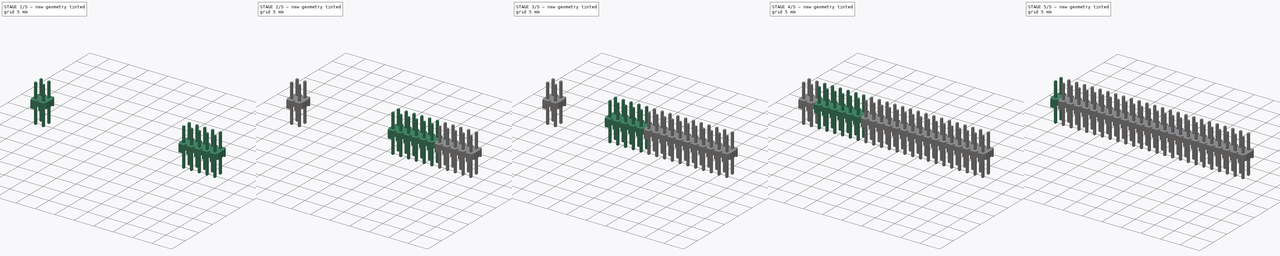
[diagram: build sequence overview — one tinted view per stage of 5, left to right]
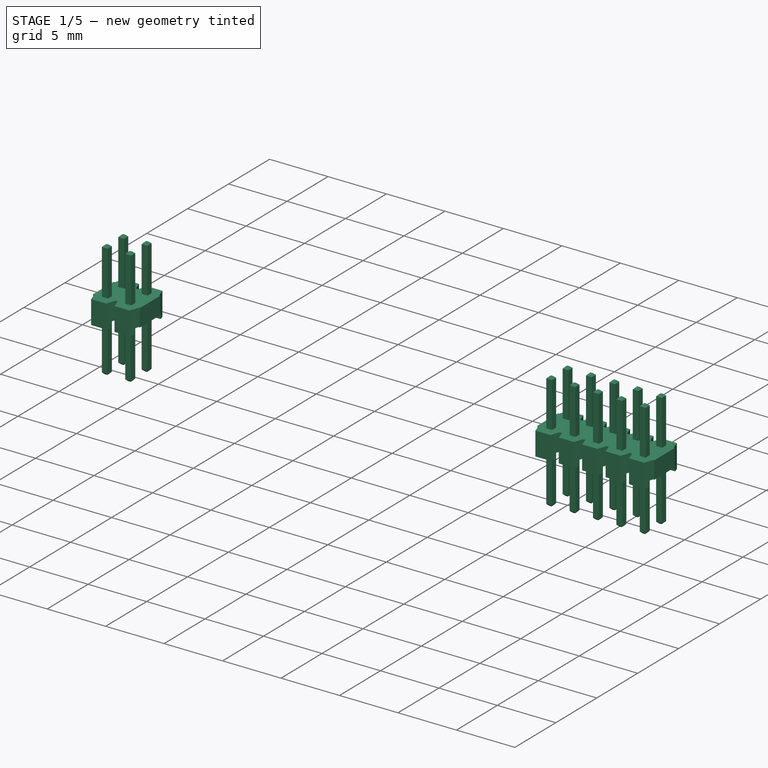
[diagram: stage 1 of 5 — iso view after this stage's code; geometry added in this stage tinted green]
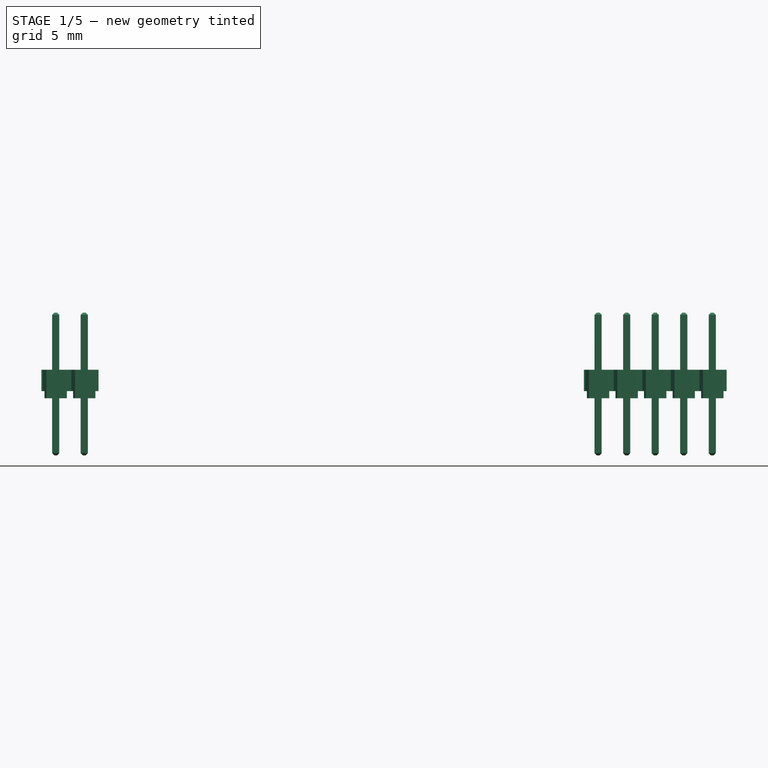
[diagram: stage 1 of 5 — front view after this stage's code; geometry added in this stage tinted green]
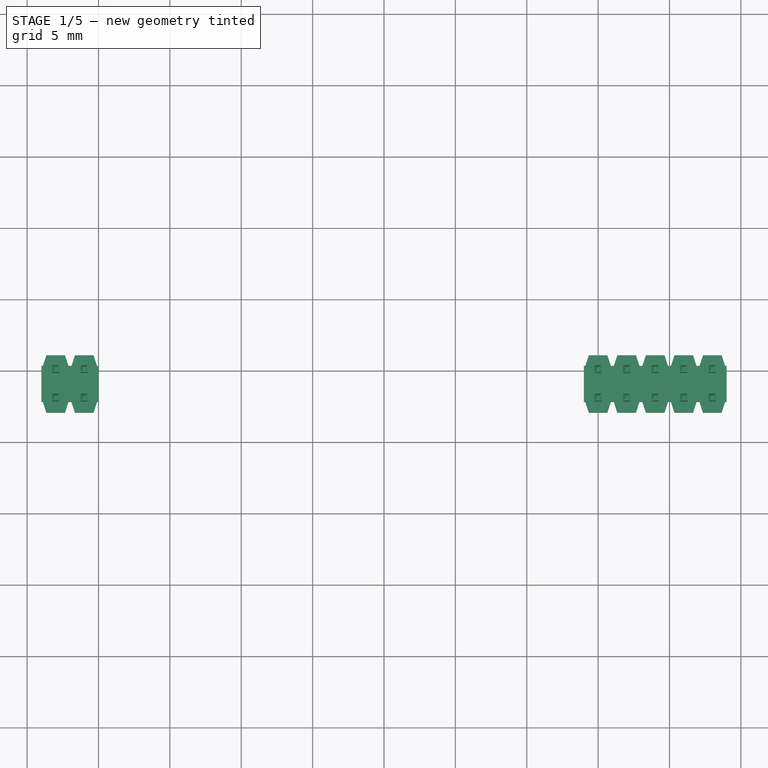
[diagram: stage 1 of 5 — top view after this stage's code; geometry added in this stage tinted green]
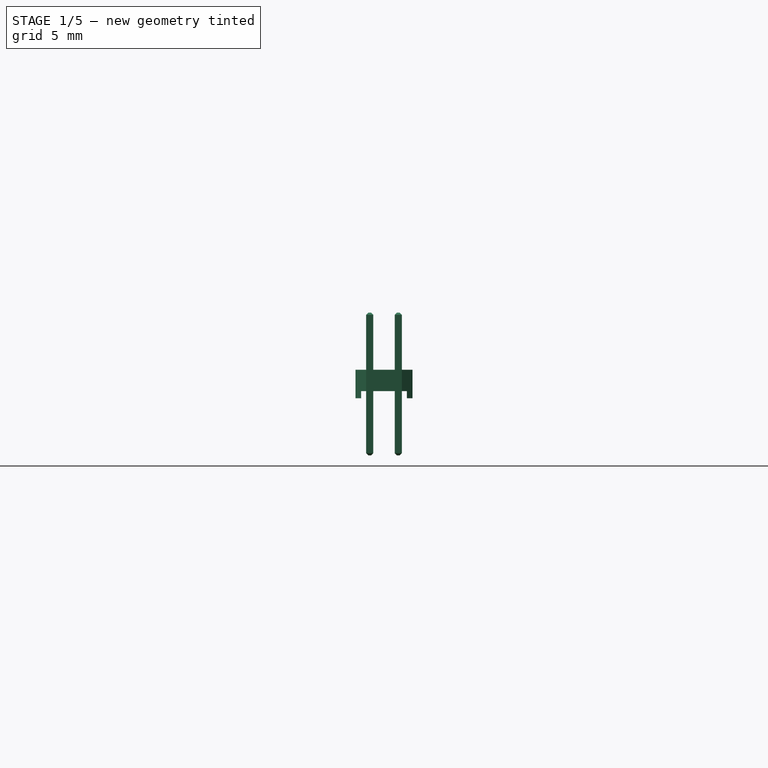
[diagram: stage 1 of 5 — right view after this stage's code; geometry added in this stage tinted green]
FCSTD DOCUMENT  (FreeCAD 0.14R3702 (Git))
Label: 2x24-male-pin-header-2mm-pitch
License: CC-BY 3.0
LicenseURL: http://creativecommons.org/licenses/by/3.0/
objects: Part::Feature×24, Part::MultiFuse×23, Sketcher::SketchObject×4, PartDesign::Pad×2, PartDesign::Pocket×2, PartDesign::Chamfer×1, Part::Fuse×1, App::DocumentObjectGroup×1
note: 61 computed .brp shape members not serialized (recipe doc carries the construction recipe); baked Part::Feature solids carry a one-line shape summary decoded from their .brp

FEATURE [App::DocumentObjectGroup] Groupe  label="Header_src"
  Group = -> [Pocket,Pad001,Pad,Fusion]
FEATURE [Part::Feature] Fusion001 .. Fusion024  x24 (patterned run collapsed; names and placements below)
  shape: bbox 2 x 4 x 10 mm, 54 faces (baked)
  placements: 24 in arithmetic series — first pos=(2,0,0) rot=(0,0,1;0rad), step (2,0,0), last pos=(48,0,0) rot=(0,0,1;0rad)
FEATURE [Part::MultiFuse] Fusion025
  Shapes = -> [Fusion001,Fusion002]
FEATURE [Part::MultiFuse] Fusion026
  Shapes = -> [Fusion025,Fusion024]
FEATURE [Part::MultiFuse] Fusion027
  Shapes = -> [Fusion026,Fusion023]
FEATURE [Part::MultiFuse] Fusion028
  Shapes = -> [Fusion027,Fusion022]
FEATURE [Part::MultiFuse] Fusion029
  Shapes = -> [Fusion028,Fusion021]
FEATURE [Part::MultiFuse] Fusion030
  Shapes = -> [Fusion029,Fusion020]
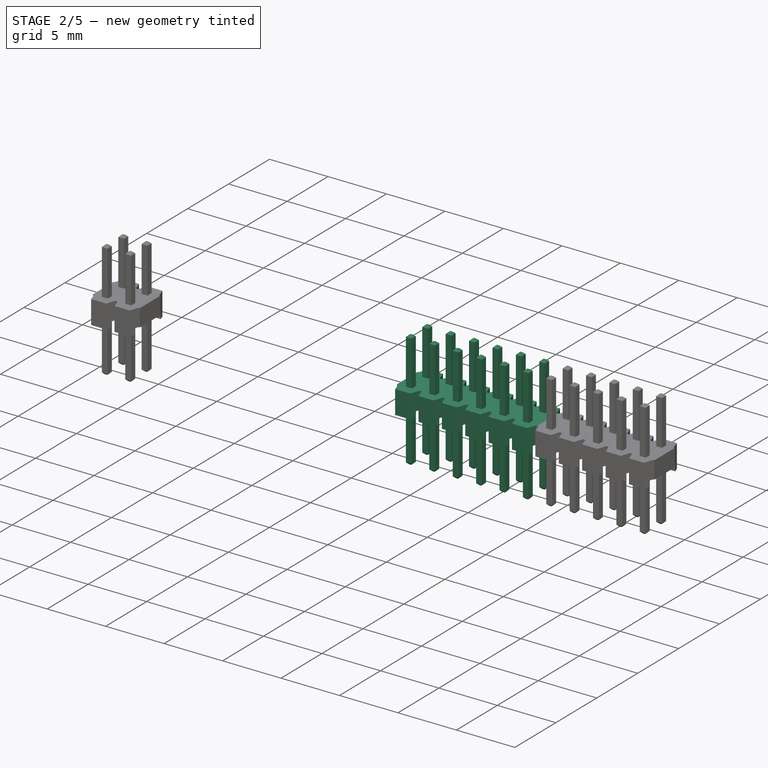
[diagram: stage 2 of 5 — iso view after this stage's code; geometry added in this stage tinted green]
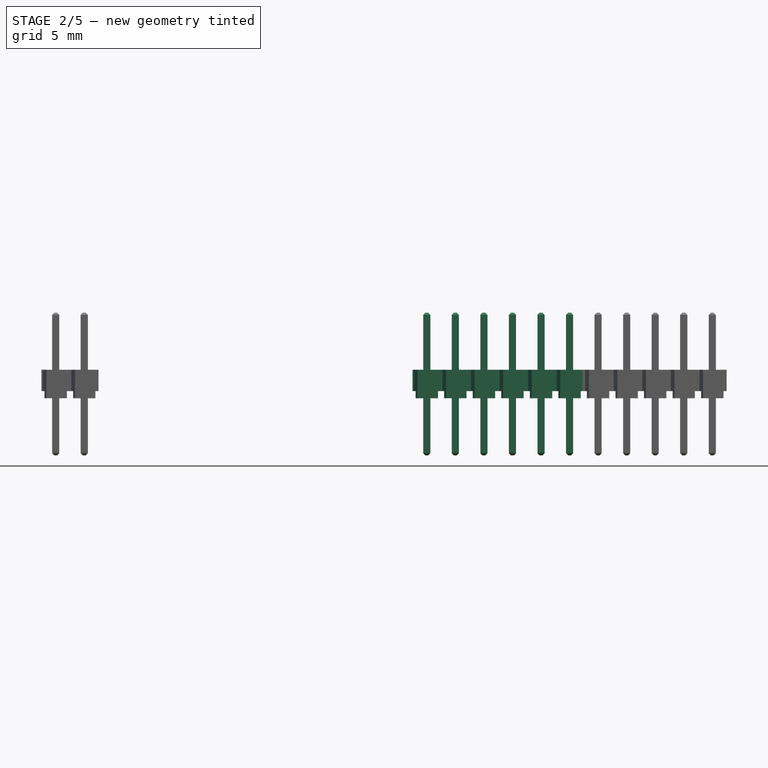
[diagram: stage 2 of 5 — front view after this stage's code; geometry added in this stage tinted green]
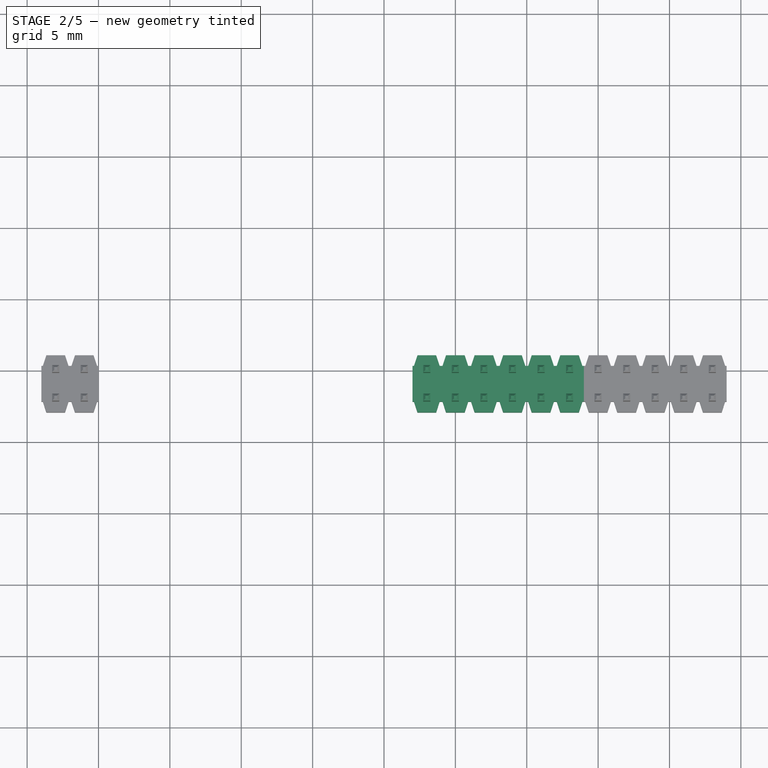
[diagram: stage 2 of 5 — top view after this stage's code; geometry added in this stage tinted green]
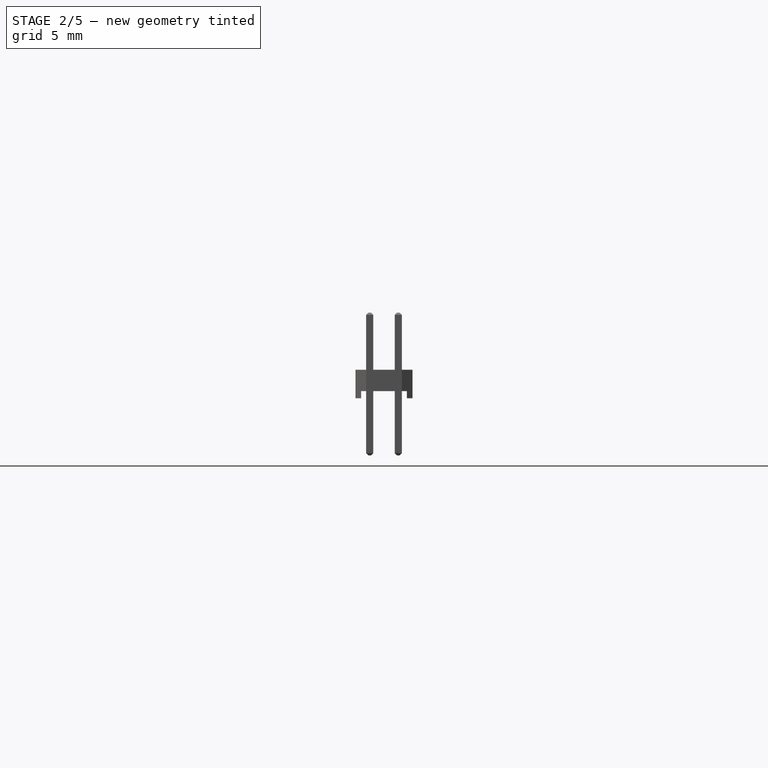
[diagram: stage 2 of 5 — right view after this stage's code; geometry added in this stage tinted green]
FEATURE [Part::MultiFuse] Fusion031
  Shapes = -> [Fusion030,Fusion019]
FEATURE [Part::MultiFuse] Fusion032
  Shapes = -> [Fusion031,Fusion018]
FEATURE [Part::MultiFuse] Fusion033
  Shapes = -> [Fusion032,Fusion017]
FEATURE [Part::MultiFuse] Fusion034
  Shapes = -> [Fusion033,Fusion016]
FEATURE [Part::MultiFuse] Fusion035
  Shapes = -> [Fusion034,Fusion015]
FEATURE [Part::MultiFuse] Fusion036
  Shapes = -> [Fusion035,Fusion014]
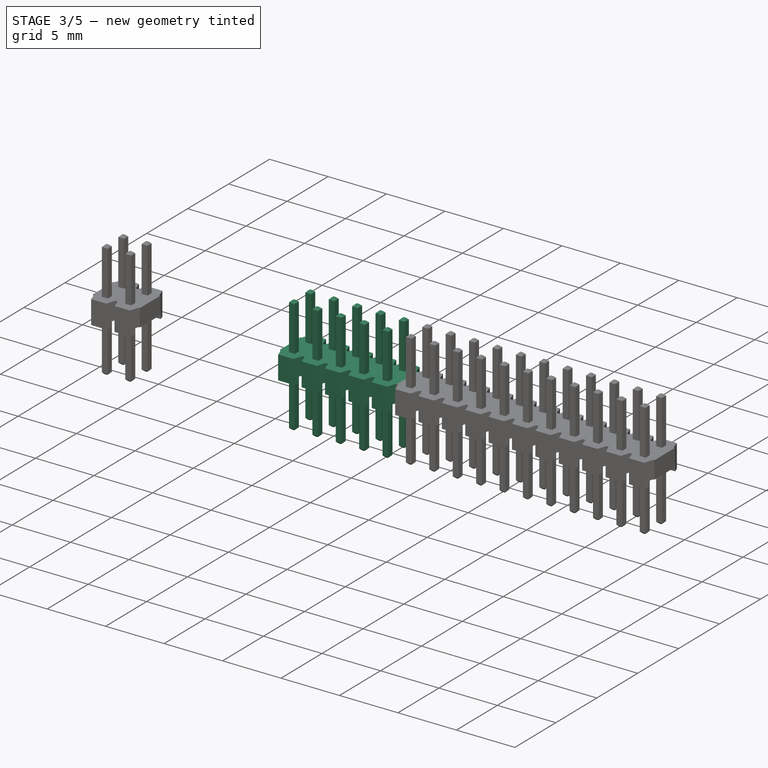
[diagram: stage 3 of 5 — iso view after this stage's code; geometry added in this stage tinted green]
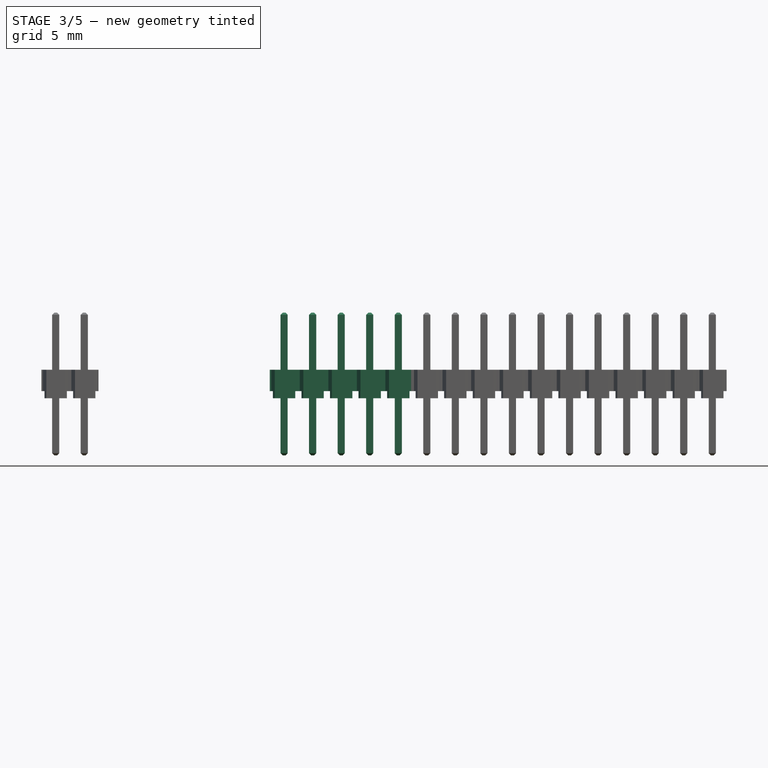
[diagram: stage 3 of 5 — front view after this stage's code; geometry added in this stage tinted green]
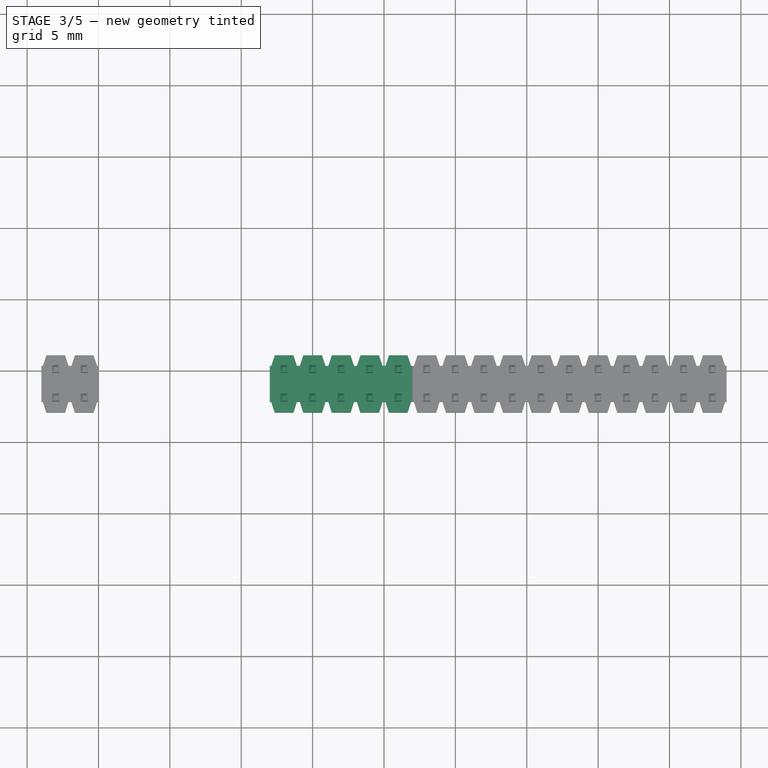
[diagram: stage 3 of 5 — top view after this stage's code; geometry added in this stage tinted green]
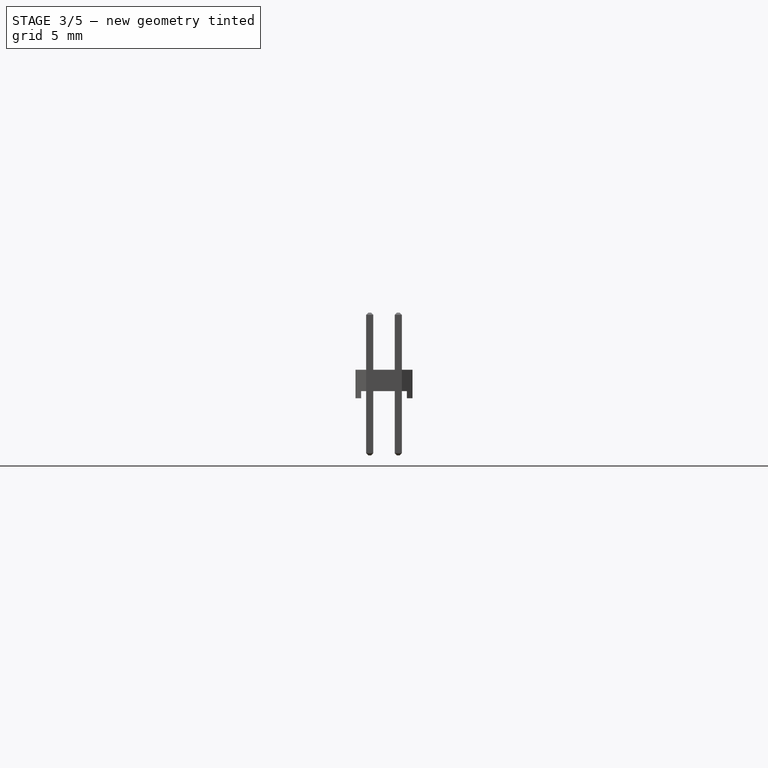
[diagram: stage 3 of 5 — right view after this stage's code; geometry added in this stage tinted green]
FEATURE [Part::MultiFuse] Fusion037
  Shapes = -> [Fusion036,Fusion013]
FEATURE [Part::MultiFuse] Fusion038
  Shapes = -> [Fusion037,Fusion012]
FEATURE [Part::MultiFuse] Fusion039
  Shapes = -> [Fusion038,Fusion011]
FEATURE [Part::MultiFuse] Fusion040
  Shapes = -> [Fusion039,Fusion010]
FEATURE [Part::MultiFuse] Fusion041
  Shapes = -> [Fusion040,Fusion009]
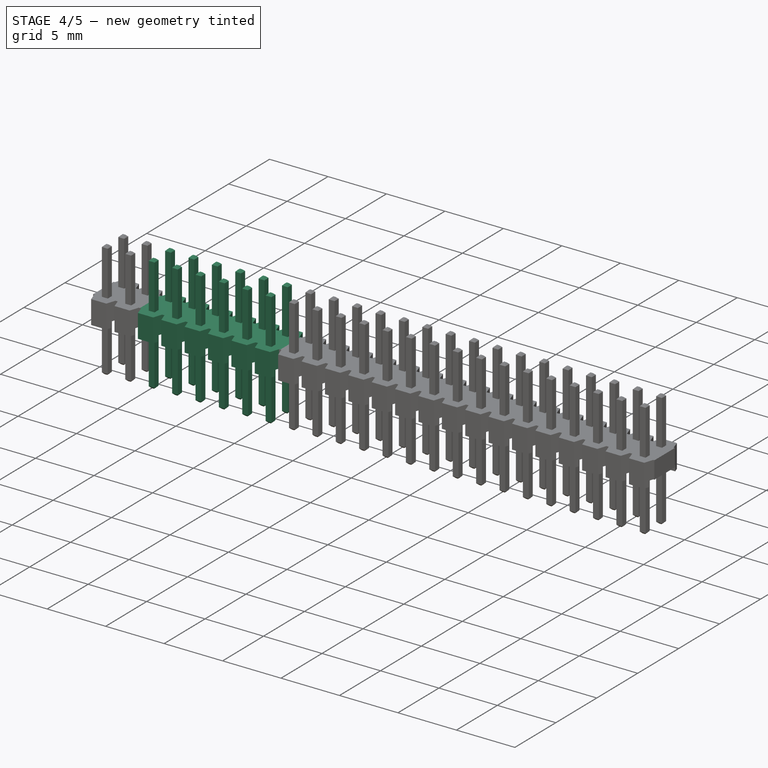
[diagram: stage 4 of 5 — iso view after this stage's code; geometry added in this stage tinted green]
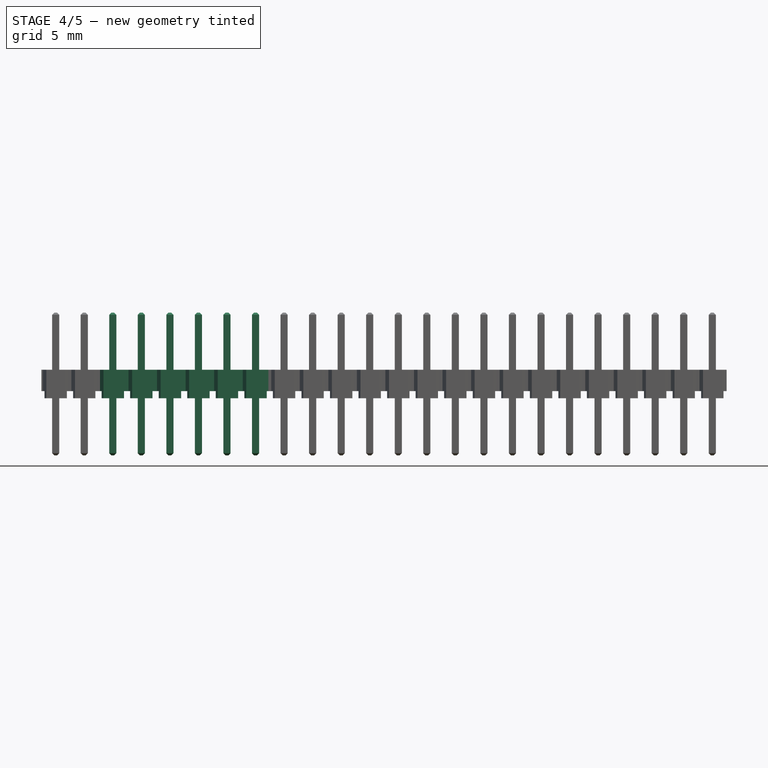
[diagram: stage 4 of 5 — front view after this stage's code; geometry added in this stage tinted green]
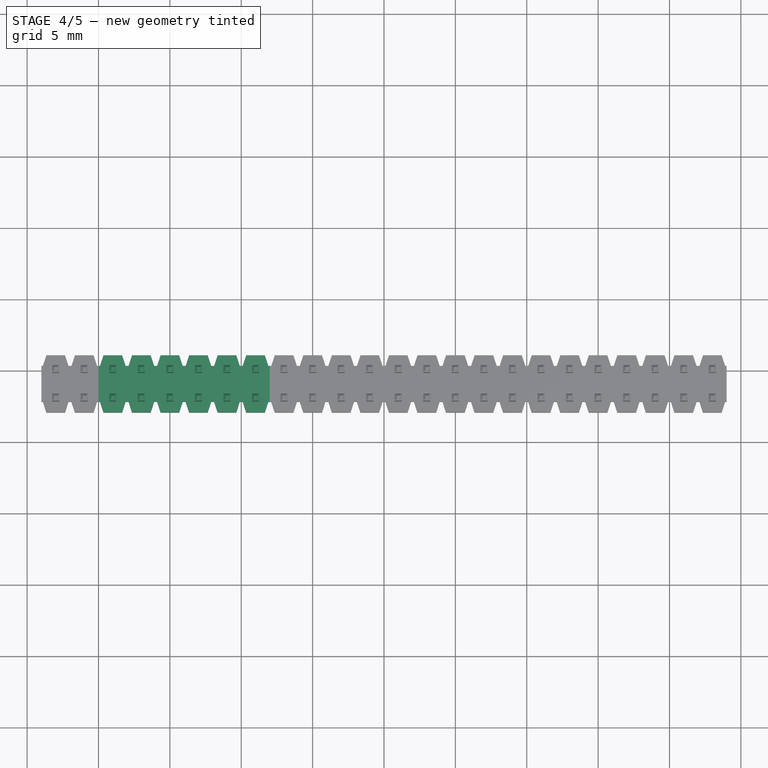
[diagram: stage 4 of 5 — top view after this stage's code; geometry added in this stage tinted green]
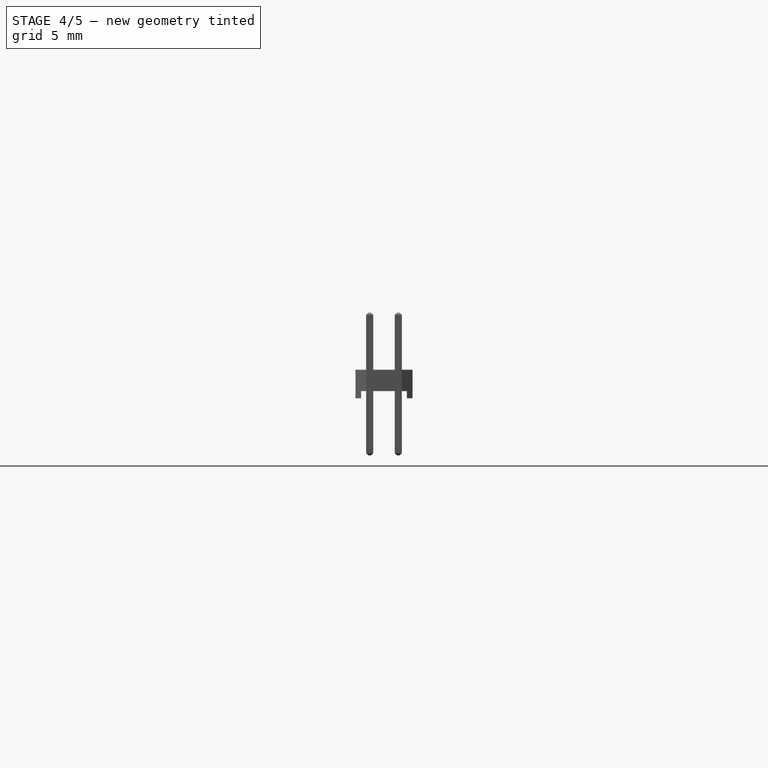
[diagram: stage 4 of 5 — right view after this stage's code; geometry added in this stage tinted green]
FEATURE [Part::MultiFuse] Fusion042
  Shapes = -> [Fusion041,Fusion008]
FEATURE [Part::MultiFuse] Fusion043
  Shapes = -> [Fusion042,Fusion007]
FEATURE [Part::MultiFuse] Fusion044
  Shapes = -> [Fusion043,Fusion006]
FEATURE [Part::MultiFuse] Fusion045
  Shapes = -> [Fusion044,Fusion005]
FEATURE [Part::MultiFuse] Fusion046
  Shapes = -> [Fusion045,Fusion004]
FEATURE [Part::MultiFuse] Fusion047  label="header-2x24"
  Shapes = -> [Fusion046,Fusion003]
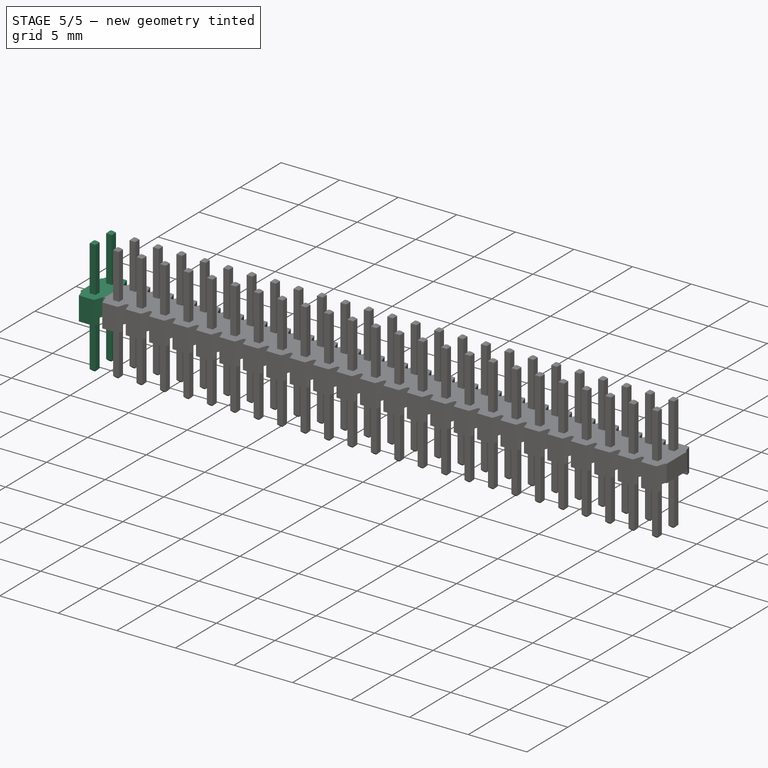
[diagram: stage 5 of 5 — iso view after this stage's code; geometry added in this stage tinted green]
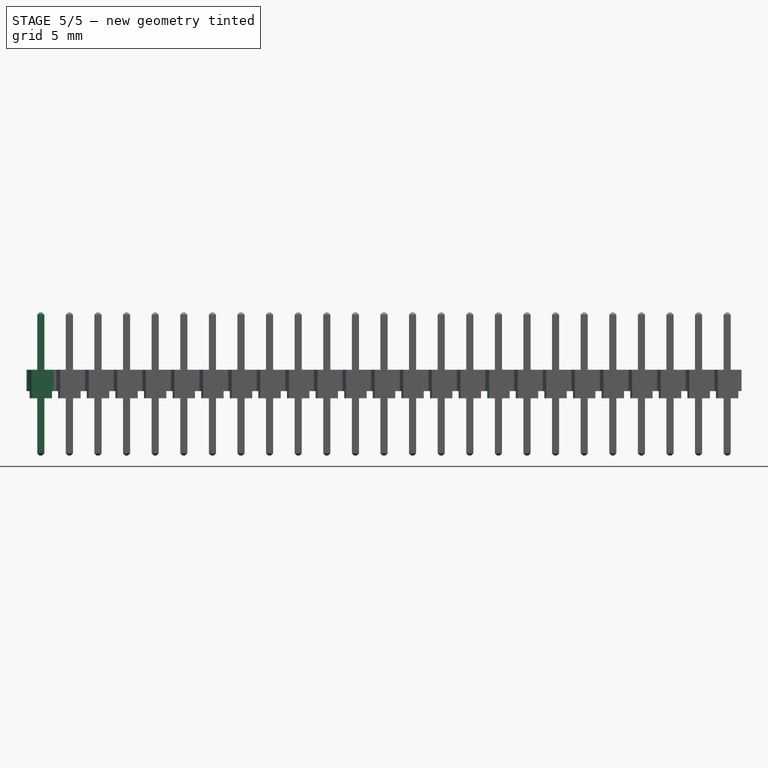
[diagram: stage 5 of 5 — front view after this stage's code; geometry added in this stage tinted green]
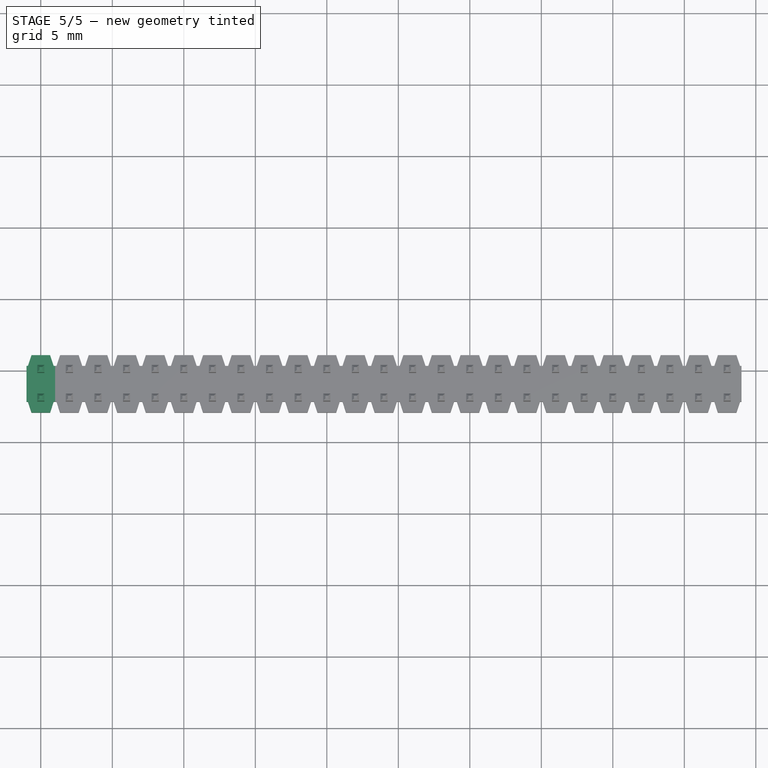
[diagram: stage 5 of 5 — top view after this stage's code; geometry added in this stage tinted green]
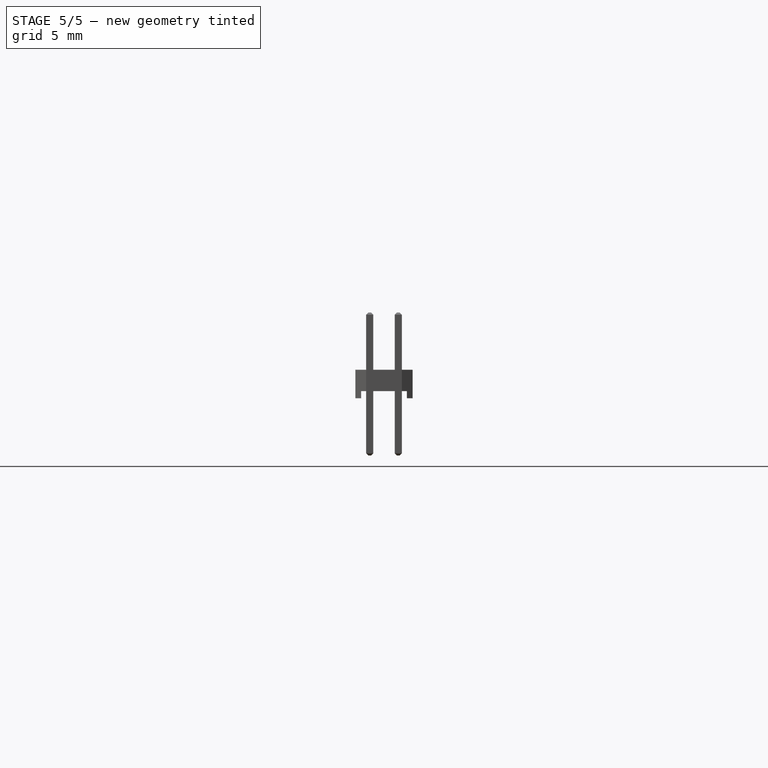
[diagram: stage 5 of 5 — right view after this stage's code; geometry added in this stage tinted green]
FEATURE [Sketcher::SketchObject] Sketch
  sketch-geometry (9):
    g0: LineSegment StartX=-0.25 StartY=0.25 StartZ=0 EndX=0.25 EndY=0.25 EndZ=0
    g1: LineSegment StartX=0.25 StartY=0.25 StartZ=0 EndX=0.25 EndY=-0.25 EndZ=0
    g2: LineSegment StartX=0.25 StartY=-0.25 StartZ=0 EndX=-0.25 EndY=-0.25 EndZ=0
    g3: LineSegment StartX=-0.25 StartY=-0.25 StartZ=0 EndX=-0.25 EndY=0.25 EndZ=0
    g4: LineSegment StartX=0.25 StartY=-0.25 StartZ=0 EndX=-0.25 EndY=0.25 EndZ=0
    g5: LineSegment StartX=-0.25 StartY=-1.75 StartZ=0 EndX=0.25 EndY=-1.75 EndZ=0
    g6: LineSegment StartX=0.25 StartY=-1.75 StartZ=0 EndX=0.25 EndY=-2.25 EndZ=0
    g7: LineSegment StartX=0.25 StartY=-2.25 StartZ=0 EndX=-0.25 EndY=-2.25 EndZ=0
    g8: LineSegment StartX=-0.25 StartY=-2.25 StartZ=0 EndX=-0.25 EndY=-1.75 EndZ=0
  constraints (26):
    c: Coincident(g0,g1)
    c: Coincident(g1,g2)
    c: Coincident(g2,g3)
    c: Coincident(g3,g0)
    c: Horizontal(g0)
    c: Horizontal(g2)
    c: Vertical(g1)
    c: Vertical(g3)
    c: DistanceX(g0) = 0.5
    c: DistanceY(g1) = -0.5
    c: Coincident(g4,g1)
    c: Coincident(g4,g0)
    c: DistanceX(g-1,g0) = 0.25
    c: DistanceY(g-1,g0) = 0.25
    c: Coincident(g5,g6)
    c: Coincident(g6,g7)
    c: Coincident(g7,g8)
    c: Coincident(g8,g5)
    c: Horizontal(g5)
    c: Horizontal(g7)
    c: Vertical(g6)
    c: Vertical(g8)
    c: Equal(g5,g2)
    c: Equal(g6,g1)
    c: DistanceX(g-1,g5) = 0.25
    c: DistanceY(g-1,g5) = -1.75
FEATURE [PartDesign::Pad] Pad
  Length = 10
  Length2 = 100
  Sketch = -> Sketch
  Type = 0
FEATURE [Sketcher::SketchObject] Sketch001
  Placement = pos=(0,0,4) rot=(0,0,1;0rad)
  sketch-geometry (5):
    g0: LineSegment StartX=-1 StartY=1 StartZ=0 EndX=1 EndY=1 EndZ=0
    g1: LineSegment StartX=1 StartY=1 StartZ=0 EndX=1 EndY=-3 EndZ=0
    g2: LineSegment StartX=1 StartY=-3 StartZ=0 EndX=-1 EndY=-3 EndZ=0
    g3: LineSegment StartX=-1 StartY=-3 StartZ=0 EndX=-1 EndY=1 EndZ=0
    g4: GeomPoint [constr] X=0 Y=0 Z=0
  constraints (14):
    c: Coincident(g0,g1)
    c: Coincident(g1,g2)
    c: Coincident(g2,g3)
    c: Coincident(g3,g0)
    c: Horizontal(g0)
    c: Horizontal(g2)
    c: Vertical(g1)
    c: Vertical(g3)
    c: DistanceX(g0) = 2
    c: DistanceY(g3) = 4
    c: PointOnObject(g4,g-1)
    c: PointOnObject(g4,g-2)
    c: DistanceY(g-1,g0) = 1
    c: DistanceX(g-1,g0) = 1
FEATURE [PartDesign::Pad] Pad001
  Length = 2
  Length2 = 100
  Placement = pos=(0,0,4) rot=(0,0,1;0rad)
  Sketch = -> Sketch001
  Type = 0
FEATURE [Sketcher::SketchObject] Sketch002
  ExternalGeometry = -> [Pad001]
  Placement = pos=(-1,0,4) rot=(0.57735,-0.57735,-0.57735;2.0944rad)
  Support = -> Pad001 [Face4]
  sketch-geometry (4):
    g0: LineSegment StartX=-0.6 StartY=0 StartZ=0 EndX=2.6 EndY=0 EndZ=0
    g1: LineSegment StartX=2.6 StartY=0 StartZ=0 EndX=2.6 EndY=0.5 EndZ=0
    g2: LineSegment StartX=2.6 StartY=0.5 StartZ=0 EndX=-0.6 EndY=0.5 EndZ=0
    g3: LineSegment StartX=-0.6 StartY=0.5 StartZ=0 EndX=-0.6 EndY=0 EndZ=0
  constraints (12):
    c: Coincident(g0,g1)
    c: Coincident(g1,g2)
    c: Coincident(g2,g3)
    c: Coincident(g3,g0)
    c: Horizontal(g0)
    c: Horizontal(g2)
    c: Vertical(g1)
    c: Vertical(g3)
    c: DistanceX(g1,g-3) = 0.4
    c: DistanceX(g2,g-4) = -0.4
    c: DistanceY(g1) = 0.5
    c: PointOnObject(g0,g-5)
FEATURE [PartDesign::Pocket] Pocket
  Length = 5
  Placement = pos=(0,0,4) rot=(0,0,1;0rad)
  Sketch = -> Sketch002
  Type = 1
FEATURE [Sketcher::SketchObject] Sketch003
  ExternalGeometry = -> [Pocket]
  Placement = pos=(0,0,6) rot=(0,0,1;0rad)
  Support = -> Pocket [Face5]
  sketch-geometry (16):
    g0: LineSegment StartX=-1 StartY=0.25 StartZ=0 EndX=-0.9 EndY=0.25 EndZ=0
    g1: LineSegment StartX=-0.9 StartY=0.25 StartZ=0 EndX=-0.65 EndY=1 EndZ=0
    g2: LineSegment StartX=-0.65 StartY=1 StartZ=0 EndX=-1 EndY=1 EndZ=0
    g3: LineSegment StartX=-1 StartY=1 StartZ=0 EndX=-1 EndY=0.25 EndZ=0
    g4: LineSegment StartX=-1 StartY=-2.25 StartZ=0 EndX=-1 EndY=-3 EndZ=0
    g5: LineSegment StartX=-1 StartY=-3 StartZ=0 EndX=-0.65 EndY=-3 EndZ=0
    g6: LineSegment StartX=-0.65 StartY=-3 StartZ=0 EndX=-0.9 EndY=-2.25 EndZ=0
    g7: LineSegment StartX=-0.9 StartY=-2.25 StartZ=0 EndX=-1 EndY=-2.25 EndZ=0
    g8: LineSegment StartX=0.65 StartY=1 StartZ=0 EndX=1 EndY=1 EndZ=0
    g9: LineSegment StartX=1 StartY=1 StartZ=0 EndX=1 EndY=0.25 EndZ=0
    g10: LineSegment StartX=1 StartY=0.25 StartZ=0 EndX=0.9 EndY=0.25 EndZ=0
    g11: LineSegment StartX=0.9 StartY=0.25 StartZ=0 EndX=0.65 EndY=1 EndZ=0
    g12: LineSegment StartX=0.65 StartY=-3 StartZ=0 EndX=1 EndY=-3 EndZ=0
    g13: LineSegment StartX=1 StartY=-3 StartZ=0 EndX=1 EndY=-2.25 EndZ=0
    g14: LineSegment StartX=1 StartY=-2.25 StartZ=0 EndX=0.9 EndY=-2.25 EndZ=0
    g15: LineSegment StartX=0.9 StartY=-2.25 StartZ=0 EndX=0.65 EndY=-3 EndZ=0
  constraints (44):
    c: Horizontal(g0)
    c: Coincident(g0,g1)
    c: Coincident(g1,g2)
    c: Horizontal(g2)
    c: Coincident(g2,g3)
    c: Coincident(g3,g0)
    c: Vertical(g3)
    c: Vertical(g4)
    c: Coincident(g4,g5)
    c: Horizontal(g5)
    c: Coincident(g5,g6)
    c: Coincident(g6,g7)
    c: Coincident(g7,g4)
    c: Horizontal(g8)
    c: Coincident(g8,g9)
    c: Vertical(g9)
    c: Coincident(g9,g10)
    c: Horizontal(g10)
    c: Coincident(g10,g11)
    c: Coincident(g11,g8)
    c: Horizontal(g12)
    c: Coincident(g12,g13)
    c: Vertical(g13)
    c: Coincident(g13,g14)
    c: Horizontal(g14)
    c: Coincident(g14,g15)
    c: Coincident(g12,g15)
    c: Equal(g0,g10)
    c: Equal(g14,g7)
    c: Equal(g14,g10)
    c: Equal(g13,g9)
    c: Equal(g4,g13)
    c: Equal(g9,g3)
    c: Equal(g2,g8)
    c: Equal(g12,g5)
    c: Equal(g12,g8)
    c: Horizontal(g7)
    c: DistanceY(g9,g8) = 0.75
    c: DistanceX(g10,g9) = 0.1
    c: DistanceX(g8,g8) = 0.35
    c: Coincident(g8,g-3)
    c: Coincident(g2,g-3)
    c: Coincident(g12,g-4)
    c: Coincident(g4,g-4)
FEATURE [PartDesign::Pocket] Pocket001
  Length = 5
  Placement = pos=(0,0,4) rot=(0,0,1;0rad)
  Sketch = -> Sketch003
  Type = 0
FEATURE [PartDesign::Chamfer] Chamfer
  Base = -> Pad [Edge16,Edge19,Edge22,Edge24,Edge4,Edge7,Edge10,Edge12,Edge15,Edge18,Edge21,Edge23,Edge3,Edge6,Edge9,Edge11]
  Size = 0.15
FEATURE [Part::Fuse] Fusion
  Base = -> Pocket001
  Tool = -> Chamfer
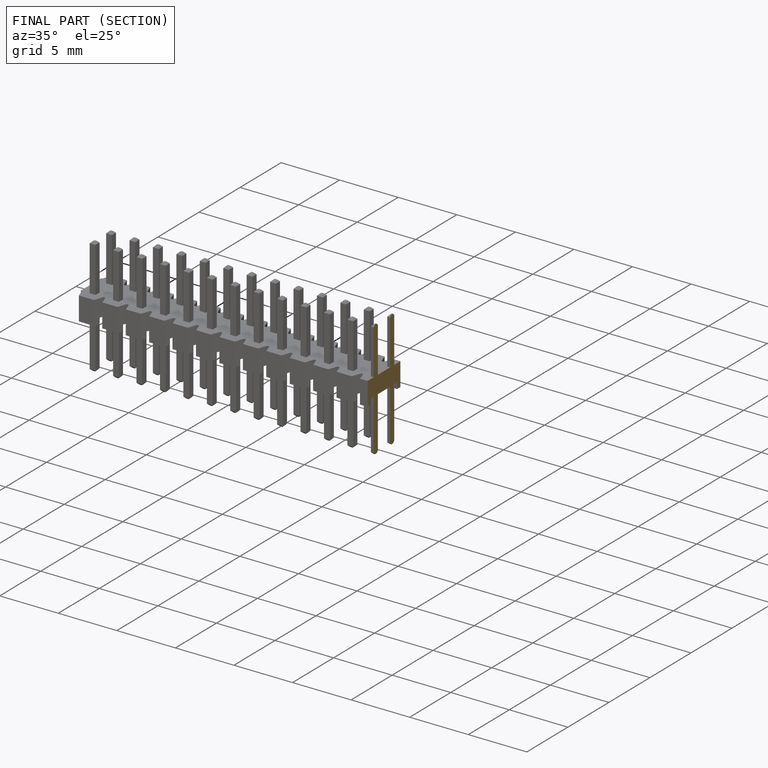
[diagram: finished part — half-section view (interior)]
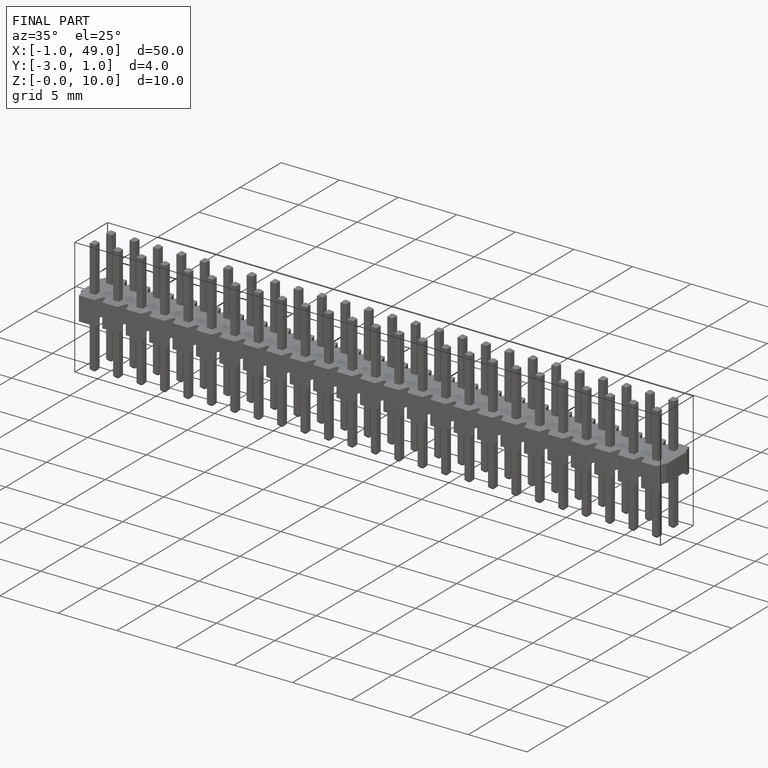
[diagram: finished part — iso view with bounding-box wireframe]
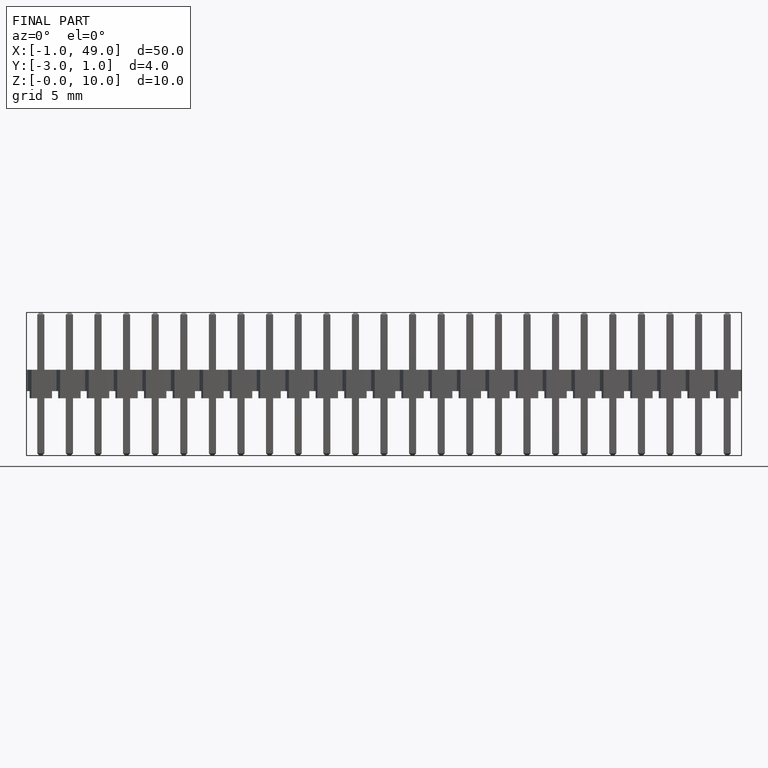
[diagram: finished part — front view with bounding-box wireframe]
